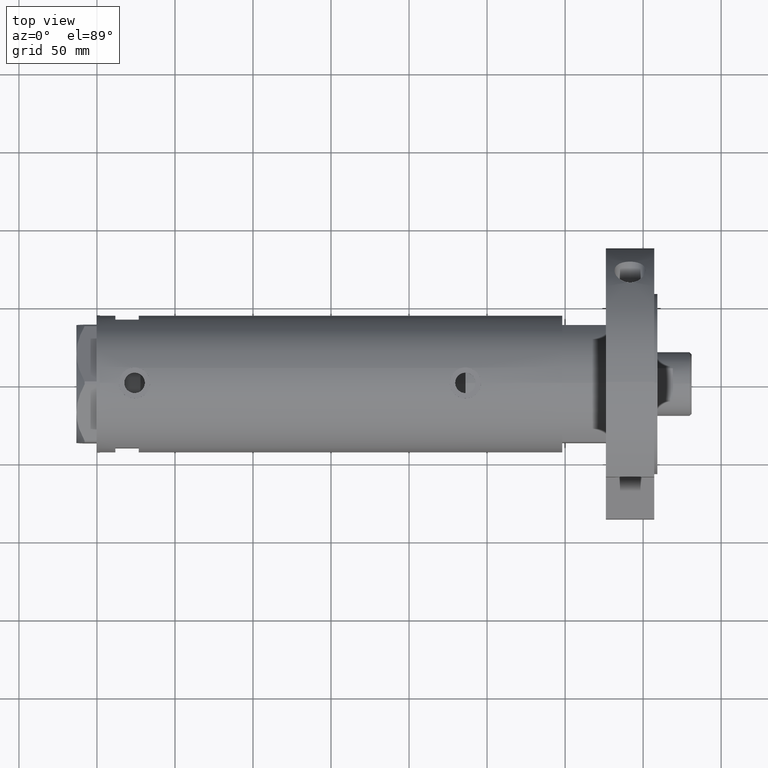
[diagram: clean part render]
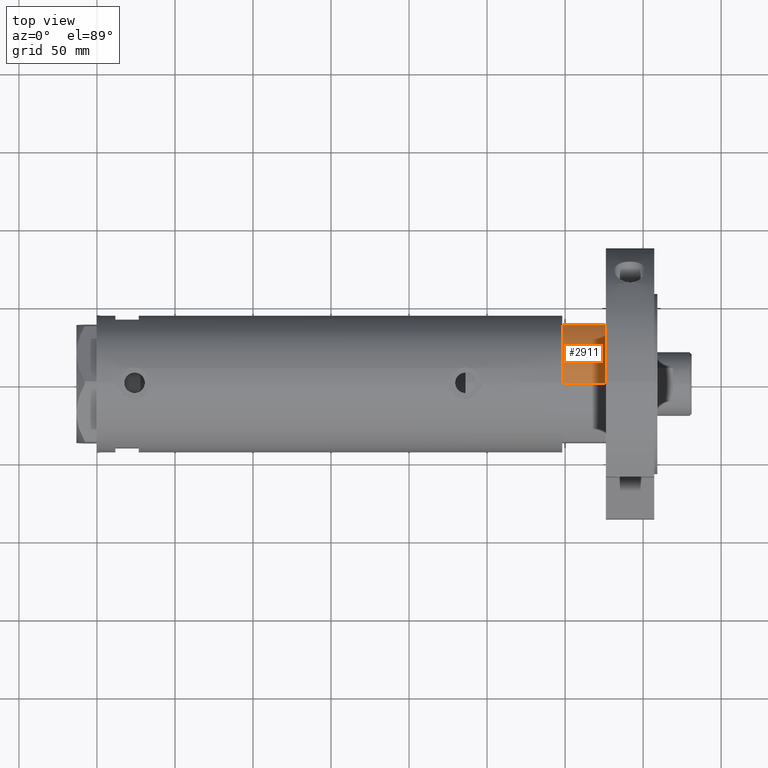
[diagram: same view with one face highlighted and labeled with its STEP entity id]
A machine part, top view. The second image highlights one B-rep face of the part: STEP entity #2911.
In plain terms, the highlighted cylindrical surface (partial cylindrical patch) has radius 44 mm, axis along (-1, -0, 0).
Its self-contained STEP definition (entity closure, byte-faithful):
#102 = DIRECTION ( 'NONE',  ( 0.000000000000000000, 0.000000000000000000, 1.000000000000000000 ) ) ;
#103 = ORIENTED_EDGE ( 'NONE', *, *, #3147, .F. ) ;
#1139 = VECTOR ( 'NONE', #4880, 1000.000000000000000 ) ;
#1344 = ORIENTED_EDGE ( 'NONE', *, *, #1987, .F. ) ;
#1487 = CARTESIAN_POINT ( 'NONE',  ( -23.01629857296780557, 37.50000000000000000, 0.000000000000000000 ) ) ;
#1636 = FACE_OUTER_BOUND ( 'NONE', #3492, .T. ) ;
#1707 = DIRECTION ( 'NONE',  ( -1.000000000000000000, 0.000000000000000000, 0.000000000000000000 ) ) ;
#1827 = DIRECTION ( 'NONE',  ( 1.000000000000000000, 0.000000000000000000, 0.000000000000000000 ) ) ;
#1987 = EDGE_CURVE ( 'NONE', #6919, #2215, #4807, .T. ) ;
#2215 = VERTEX_POINT ( 'NONE', #3388 ) ;
#2243 = AXIS2_PLACEMENT_3D ( 'NONE', #2312, #4078, #1707 ) ;
#2312 = CARTESIAN_POINT ( 'NONE',  ( 0.000000000000000000, 0.000000000000000000, 27.89999999999999858 ) ) ;
#2630 = VECTOR ( 'NONE', #6118, 1000.000000000000000 ) ;
#2891 = CYLINDRICAL_SURFACE ( 'NONE', #2243, 44.00000000000000000 ) ;
#2911 = ADVANCED_FACE ( 'NONE', ( #1636 ), #2891, .T. ) ;
#3147 = EDGE_CURVE ( 'NONE', #4249, #6919, #4082, .T. ) ;
#3388 = CARTESIAN_POINT ( 'NONE',  ( -44.00000000000000000, 0.000000000000000000, 0.000000000000000000 ) ) ;
#3470 = DIRECTION ( 'NONE',  ( 0.000000000000000000, 0.000000000000000000, 1.000000000000000000 ) ) ;
#3492 = EDGE_LOOP ( 'NONE', ( #1344, #103, #4052, #5082 ) ) ;
#3538 = CIRCLE ( 'NONE', #5986, 44.00000000000000000 ) ;
#3785 = CARTESIAN_POINT ( 'NONE',  ( -23.01629857296780557, 37.50000000000000000, 0.000000000000000000 ) ) ;
#4052 = ORIENTED_EDGE ( 'NONE', *, *, #4170, .F. ) ;
#4078 = DIRECTION ( 'NONE',  ( -0.000000000000000000, -0.000000000000000000, -1.000000000000000000 ) ) ;
#4082 = CIRCLE ( 'NONE', #4695, 44.00000000000000000 ) ;
#4120 = CARTESIAN_POINT ( 'NONE',  ( 0.000000000000000000, 0.000000000000000000, 0.000000000000000000 ) ) ;
#4170 = EDGE_CURVE ( 'NONE', #5913, #4249, #7153, .T. ) ;
#4249 = VERTEX_POINT ( 'NONE', #7379 ) ;
#4695 = AXIS2_PLACEMENT_3D ( 'NONE', #5342, #102, #4763 ) ;
#4763 = DIRECTION ( 'NONE',  ( 1.000000000000000000, 0.000000000000000000, 0.000000000000000000 ) ) ;
#4767 = CARTESIAN_POINT ( 'NONE',  ( -44.00000000000000000, 0.000000000000000000, 27.89999999999999858 ) ) ;
#4807 = LINE ( 'NONE', #4767, #1139 ) ;
#4880 = DIRECTION ( 'NONE',  ( -0.000000000000000000, -0.000000000000000000, -1.000000000000000000 ) ) ;
#5082 = ORIENTED_EDGE ( 'NONE', *, *, #6190, .T. ) ;
#5178 = CARTESIAN_POINT ( 'NONE',  ( -44.00000000000000000, 0.000000000000000000, 27.89999999999999858 ) ) ;
#5342 = CARTESIAN_POINT ( 'NONE',  ( 0.000000000000000000, 0.000000000000000000, 27.89999999999999858 ) ) ;
#5913 = VERTEX_POINT ( 'NONE', #1487 ) ;
#5986 = AXIS2_PLACEMENT_3D ( 'NONE', #4120, #3470, #1827 ) ;
#6118 = DIRECTION ( 'NONE',  ( -0.000000000000000000, -0.000000000000000000, 1.000000000000000000 ) ) ;
#6190 = EDGE_CURVE ( 'NONE', #5913, #2215, #3538, .T. ) ;
#6919 = VERTEX_POINT ( 'NONE', #5178 ) ;
#7153 = LINE ( 'NONE', #3785, #2630 ) ;
#7379 = CARTESIAN_POINT ( 'NONE',  ( -23.01629857296780557, 37.50000000000000000, 27.89999999999999858 ) ) ;